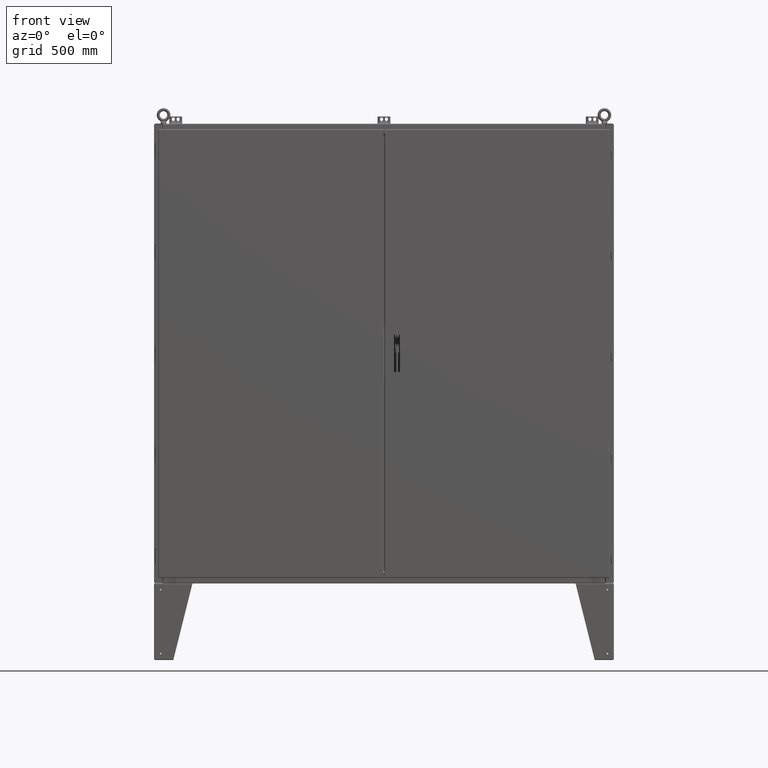
[diagram: clean part render]
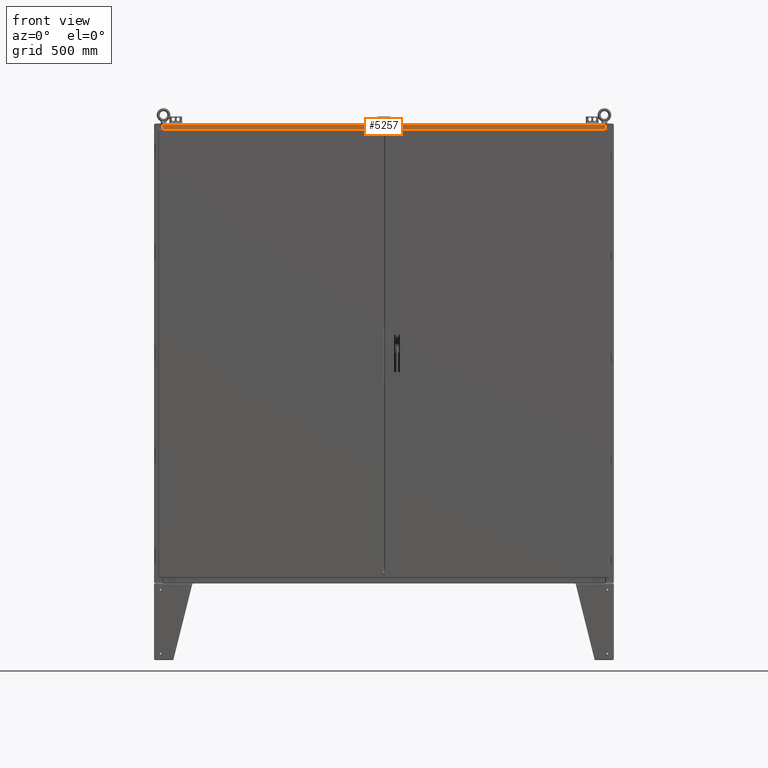
[diagram: same view with one face highlighted and labeled with its STEP entity id]
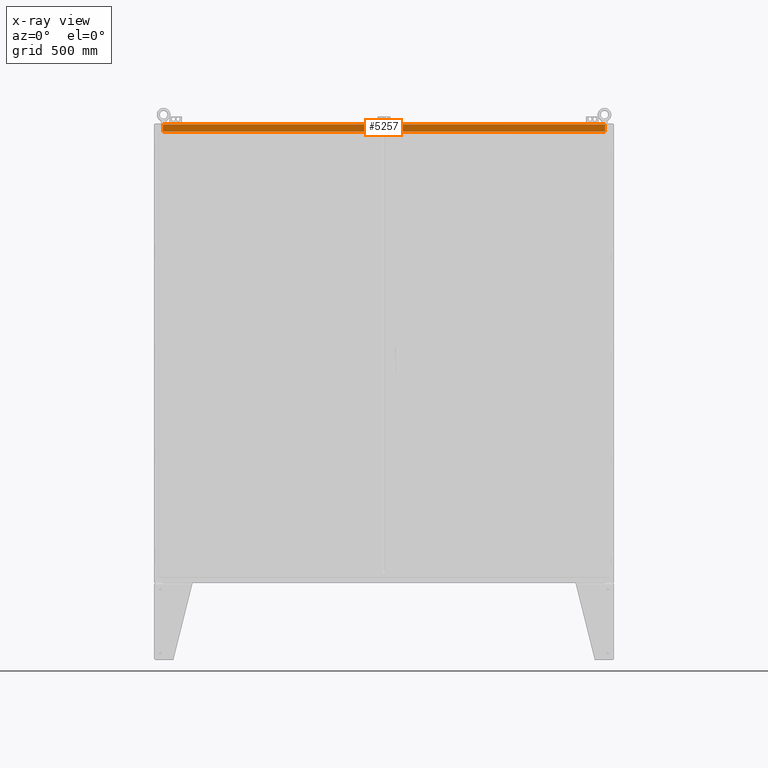
[diagram: x-ray of the same camera — body ghosted, the highlighted face saturated]
A machine part, front view. The second image highlights one B-rep face of the part: STEP entity #5257.
The next image is the same camera in x-ray: the body ghosted, the highlighted face saturated — about 0% of this face is hidden behind the body in this view.
In plain terms, the highlighted planar face has unit normal (0, -1, -0).
Its self-contained STEP definition (entity closure, byte-faithful):
#5257 = ADVANCED_FACE( '', ( #12376 ), #12377, .T. );
#12376 = FACE_OUTER_BOUND( '', #25208, .T. );
#12377 = PLANE( '', #25209 );
#25208 = EDGE_LOOP( '', ( #47924, #47925, #47926, #47927 ) );
#25209 = AXIS2_PLACEMENT_3D( '', #47928, #47929, #47930 );
#47924 = ORIENTED_EDGE( '', *, *, #75913, .T. );
#47925 = ORIENTED_EDGE( '', *, *, #75914, .T. );
#47926 = ORIENTED_EDGE( '', *, *, #72792, .T. );
#47927 = ORIENTED_EDGE( '', *, *, #75915, .F. );
#47928 = CARTESIAN_POINT( '', ( 0.000000000000000, -252.666500000000, 0.000000000000000 ) );
#47929 = DIRECTION( '', ( 0.000000000000000, -1.00000000000000, -6.12323399573677E-017 ) );
#47930 = DIRECTION( '', ( 0.000000000000000, 6.12323399573677E-017, -1.00000000000000 ) );
#72792 = EDGE_CURVE( '', #82511, #82509, #82512, .T. );
#75913 = EDGE_CURVE( '', #87823, #87824, #87825, .T. );
#75914 = EDGE_CURVE( '', #87824, #82511, #87826, .T. );
#75915 = EDGE_CURVE( '', #87823, #82509, #87827, .T. );
#82509 = VERTEX_POINT( '', #96757 );
#82511 = VERTEX_POINT( '', #96759 );
#82512 = LINE( '', #96760, #96761 );
#87823 = VERTEX_POINT( '', #110996 );
#87824 = VERTEX_POINT( '', #110997 );
#87825 = LINE( '', #110998, #110999 );
#87826 = LINE( '', #111000, #111001 );
#87827 = LINE( '', #111002, #111003 );
#96757 = CARTESIAN_POINT( '', ( -879.475000000000, -252.666500000000, -31.4452000000000 ) );
#96759 = CARTESIAN_POINT( '', ( -879.475000000000, -252.666500000000, -3.47980000000000 ) );
#96760 = CARTESIAN_POINT( '', ( -879.475000000000, -252.666500000000, 1.72084568816900E-012 ) );
#96761 = VECTOR( '', #135444, 1000.00000000000 );
#110996 = CARTESIAN_POINT( '', ( 879.475000000000, -252.666500000000, -31.4452000000000 ) );
#110997 = CARTESIAN_POINT( '', ( 879.475000000000, -252.666500000000, -3.47979999999995 ) );
#110998 = CARTESIAN_POINT( '', ( 879.475000000000, -252.666500000000, 1.72084568816900E-012 ) );
#110999 = VECTOR( '', #137421, 1000.00000000000 );
#111000 = CARTESIAN_POINT( '', ( 911.733000000000, -252.666500000000, -3.47980000000000 ) );
#111001 = VECTOR( '', #137422, 1000.00000000000 );
#111002 = CARTESIAN_POINT( '', ( 911.733000000000, -252.666500000000, -31.4452000000000 ) );
#111003 = VECTOR( '', #137423, 1000.00000000000 );
#135444 = DIRECTION( '', ( -1.96831649050427E-015, 6.12323399573677E-017, -1.00000000000000 ) );
#137421 = DIRECTION( '', ( -1.96831649050427E-015, -6.12323399573677E-017, 1.00000000000000 ) );
#137422 = DIRECTION( '', ( -1.00000000000000, 0.000000000000000, 0.000000000000000 ) );
#137423 = DIRECTION( '', ( -1.00000000000000, 0.000000000000000, 0.000000000000000 ) );